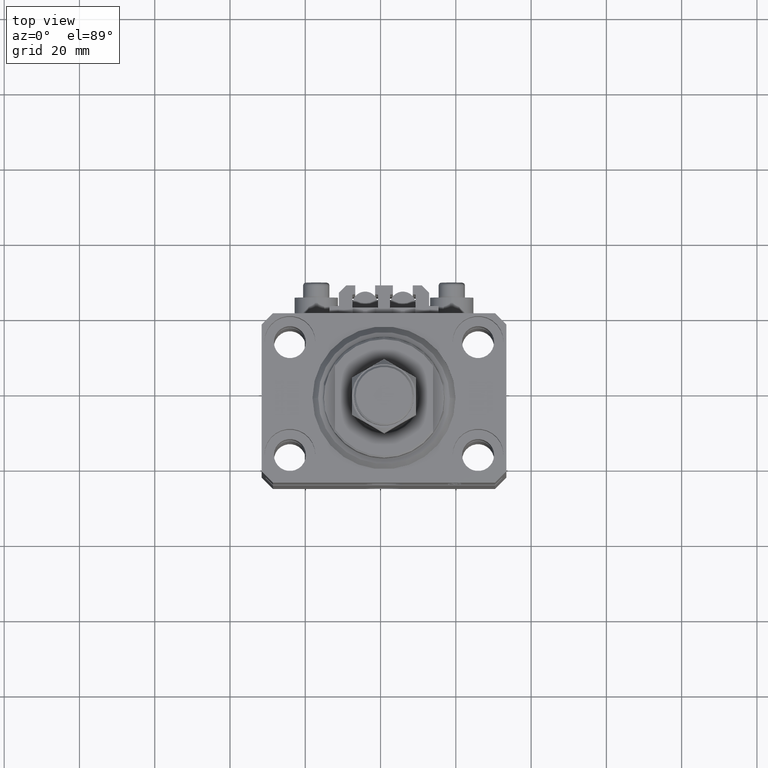
[diagram: clean part render]
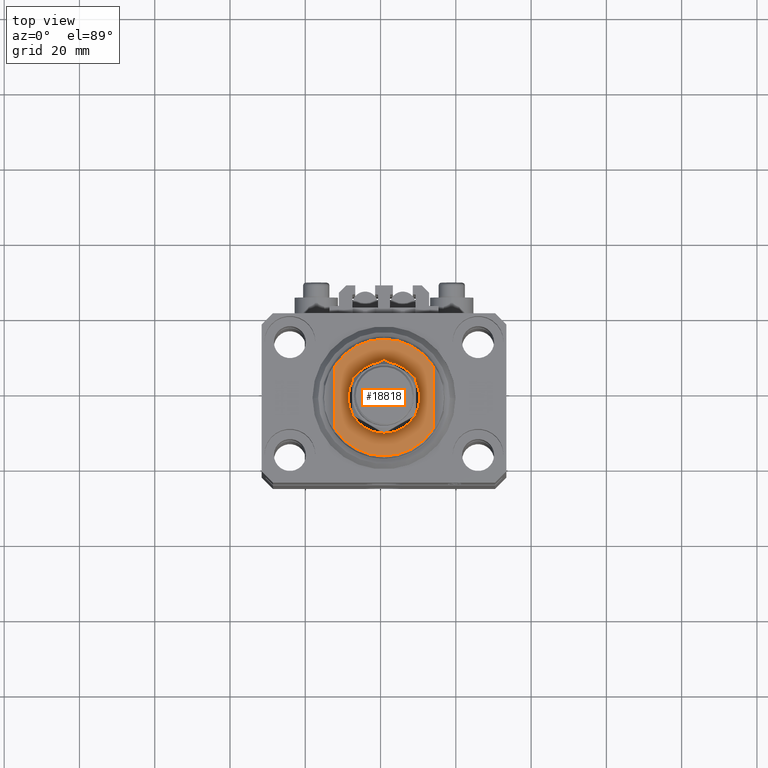
[diagram: same view with one face highlighted and labeled with its STEP entity id]
A machine part, top view. The second image highlights one B-rep face of the part: STEP entity #18818.
In plain terms, the highlighted planar face has unit normal (0, 0, 1).
Its self-contained STEP definition (entity closure, byte-faithful):
#661 = CARTESIAN_POINT ( 'NONE',  ( 13.00000000000000000, 8.440971508067139695, -6.500000000000000000 ) ) ;
#1040 = AXIS2_PLACEMENT_3D ( 'NONE', #37566, #10992, #25781 ) ;
#1599 = CARTESIAN_POINT ( 'NONE',  ( 0.000000000000000000, 0.000000000000000000, -6.500000000000000000 ) ) ;
#2253 = VERTEX_POINT ( 'NONE', #20465 ) ;
#4078 = VERTEX_POINT ( 'NONE', #38989 ) ;
#4201 = VECTOR ( 'NONE', #40275, 1000.000000000000000 ) ;
#5744 = CIRCLE ( 'NONE', #43405, 15.50000000000003730 ) ;
#6210 = EDGE_CURVE ( 'NONE', #30486, #25103, #5744, .T. ) ;
#8489 = CIRCLE ( 'NONE', #42941, 9.500000000000015987 ) ;
#9582 = AXIS2_PLACEMENT_3D ( 'NONE', #13976, #29251, #33268 ) ;
#10062 = CARTESIAN_POINT ( 'NONE',  ( 9.500000000000015987, 1.163414459189987457E-15, -6.500000000000000000 ) ) ;
#10190 = CIRCLE ( 'NONE', #26985, 15.50000000000003730 ) ;
#10677 = ORIENTED_EDGE ( 'NONE', *, *, #6210, .T. ) ;
#10992 = DIRECTION ( 'NONE',  ( 0.000000000000000000, 0.000000000000000000, -1.000000000000000000 ) ) ;
#13976 = CARTESIAN_POINT ( 'NONE',  ( 0.000000000000000000, 0.000000000000000000, -6.500000000000000000 ) ) ;
#14841 = DIRECTION ( 'NONE',  ( -1.000000000000000000, 0.000000000000000000, 0.000000000000000000 ) ) ;
#15515 = VERTEX_POINT ( 'NONE', #10062 ) ;
#16666 = EDGE_LOOP ( 'NONE', ( #40302, #40144 ) ) ;
#16954 = DIRECTION ( 'NONE',  ( 0.000000000000000000, 0.000000000000000000, -1.000000000000000000 ) ) ;
#17187 = CARTESIAN_POINT ( 'NONE',  ( 13.00000000000000000, -8.440971508067139695, -6.500000000000000000 ) ) ;
#17913 = DIRECTION ( 'NONE',  ( -0.000000000000000000, -1.000000000000000000, -0.000000000000000000 ) ) ;
#18029 = EDGE_CURVE ( 'NONE', #31285, #30486, #44034, .T. ) ;
#18501 = FACE_BOUND ( 'NONE', #16666, .T. ) ;
#18818 = ADVANCED_FACE ( 'NONE', ( #18501, #33555 ), #41586, .T. ) ;
#20465 = CARTESIAN_POINT ( 'NONE',  ( -9.500000000000015987, 0.000000000000000000, -6.500000000000000000 ) ) ;
#20700 = DIRECTION ( 'NONE',  ( -1.000000000000000000, 0.000000000000000000, 0.000000000000000000 ) ) ;
#24974 = CARTESIAN_POINT ( 'NONE',  ( 0.000000000000000000, 0.000000000000000000, -6.500000000000000000 ) ) ;
#25103 = VERTEX_POINT ( 'NONE', #42411 ) ;
#25599 = EDGE_CURVE ( 'NONE', #4078, #25103, #30192, .T. ) ;
#25781 = DIRECTION ( 'NONE',  ( -1.000000000000000000, 0.000000000000000000, -0.000000000000000000 ) ) ;
#26790 = ORIENTED_EDGE ( 'NONE', *, *, #31423, .T. ) ;
#26985 = AXIS2_PLACEMENT_3D ( 'NONE', #24974, #16954, #20700 ) ;
#27259 = ORIENTED_EDGE ( 'NONE', *, *, #18029, .T. ) ;
#27364 = CIRCLE ( 'NONE', #9582, 9.500000000000015987 ) ;
#28751 = EDGE_CURVE ( 'NONE', #15515, #2253, #8489, .T. ) ;
#29251 = DIRECTION ( 'NONE',  ( -0.000000000000000000, -0.000000000000000000, 1.000000000000000000 ) ) ;
#30192 = LINE ( 'NONE', #33462, #34094 ) ;
#30486 = VERTEX_POINT ( 'NONE', #17187 ) ;
#31285 = VERTEX_POINT ( 'NONE', #661 ) ;
#31423 = EDGE_CURVE ( 'NONE', #4078, #31285, #10190, .T. ) ;
#31980 = CARTESIAN_POINT ( 'NONE',  ( 13.00000000000000000, -43.08131845707602992, -6.500000000000000000 ) ) ;
#32442 = DIRECTION ( 'NONE',  ( -0.000000000000000000, -0.000000000000000000, 1.000000000000000000 ) ) ;
#32710 = EDGE_LOOP ( 'NONE', ( #26790, #27259, #10677, #42678 ) ) ;
#33268 = DIRECTION ( 'NONE',  ( -1.000000000000000000, 0.000000000000000000, 0.000000000000000000 ) ) ;
#33462 = CARTESIAN_POINT ( 'NONE',  ( -13.00000000000000000, -43.08131845707602992, -6.500000000000000000 ) ) ;
#33555 = FACE_OUTER_BOUND ( 'NONE', #32710, .T. ) ;
#33902 = CARTESIAN_POINT ( 'NONE',  ( 0.000000000000000000, 0.000000000000000000, -6.500000000000000000 ) ) ;
#34094 = VECTOR ( 'NONE', #17913, 1000.000000000000000 ) ;
#37566 = CARTESIAN_POINT ( 'NONE',  ( 0.000000000000000000, 0.000000000000000000, -6.500000000000000000 ) ) ;
#38989 = CARTESIAN_POINT ( 'NONE',  ( -13.00000000000000000, 8.440971508067139695, -6.500000000000000000 ) ) ;
#40144 = ORIENTED_EDGE ( 'NONE', *, *, #28751, .T. ) ;
#40275 = DIRECTION ( 'NONE',  ( 0.000000000000000000, -1.000000000000000000, -0.000000000000000000 ) ) ;
#40302 = ORIENTED_EDGE ( 'NONE', *, *, #43862, .T. ) ;
#41586 = PLANE ( 'NONE',  #1040 ) ;
#42411 = CARTESIAN_POINT ( 'NONE',  ( -13.00000000000000000, -8.440971508067139695, -6.500000000000000000 ) ) ;
#42678 = ORIENTED_EDGE ( 'NONE', *, *, #25599, .F. ) ;
#42941 = AXIS2_PLACEMENT_3D ( 'NONE', #1599, #32442, #47764 ) ;
#43405 = AXIS2_PLACEMENT_3D ( 'NONE', #33902, #49239, #14841 ) ;
#43862 = EDGE_CURVE ( 'NONE', #2253, #15515, #27364, .T. ) ;
#44034 = LINE ( 'NONE', #31980, #4201 ) ;
#47764 = DIRECTION ( 'NONE',  ( -1.000000000000000000, 0.000000000000000000, 0.000000000000000000 ) ) ;
#49239 = DIRECTION ( 'NONE',  ( 0.000000000000000000, 0.000000000000000000, -1.000000000000000000 ) ) ;